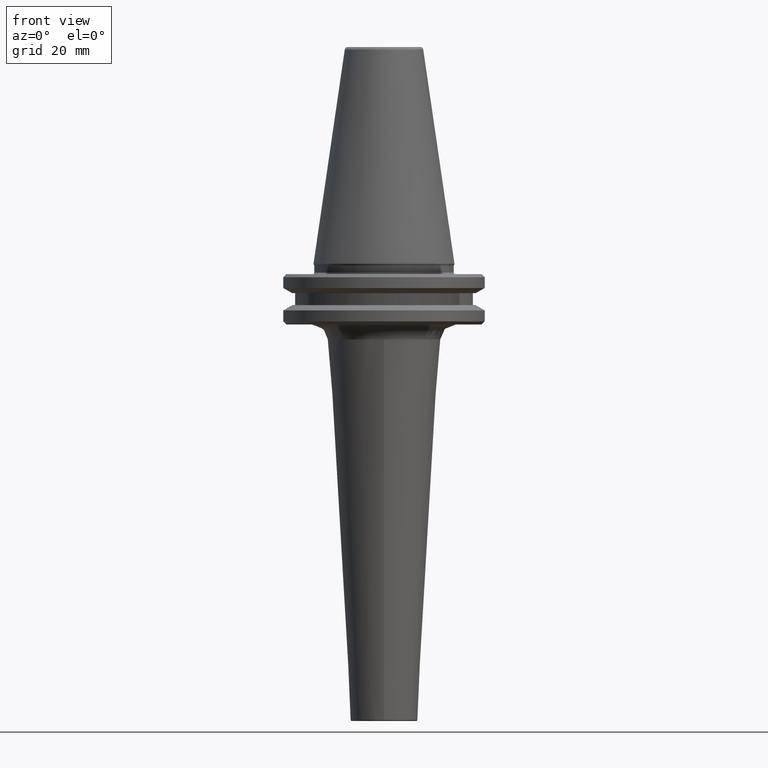
[diagram: clean part render]
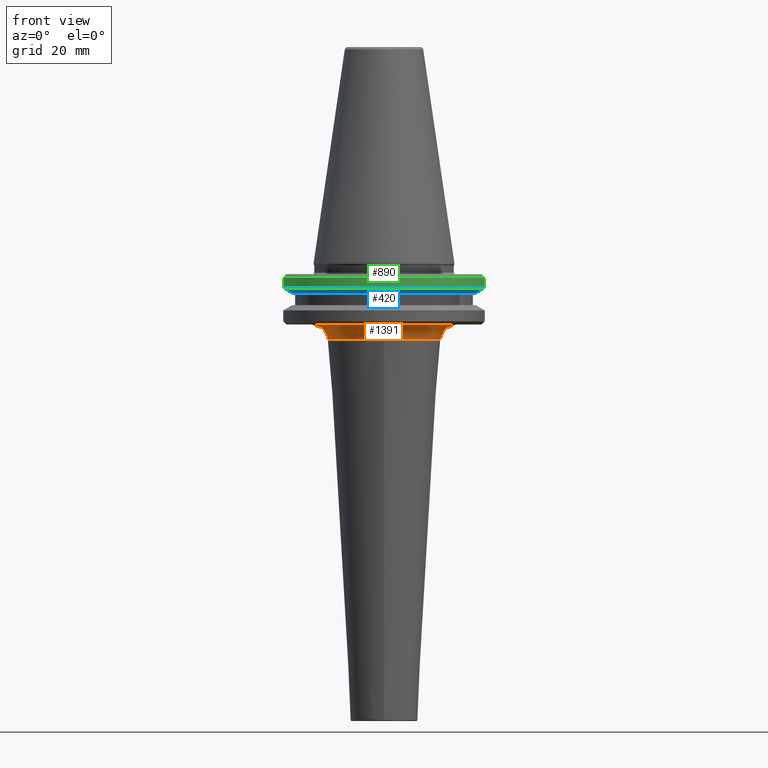
[diagram: same view with three faces highlighted in distinct colors, each labeled with its STEP entity id]
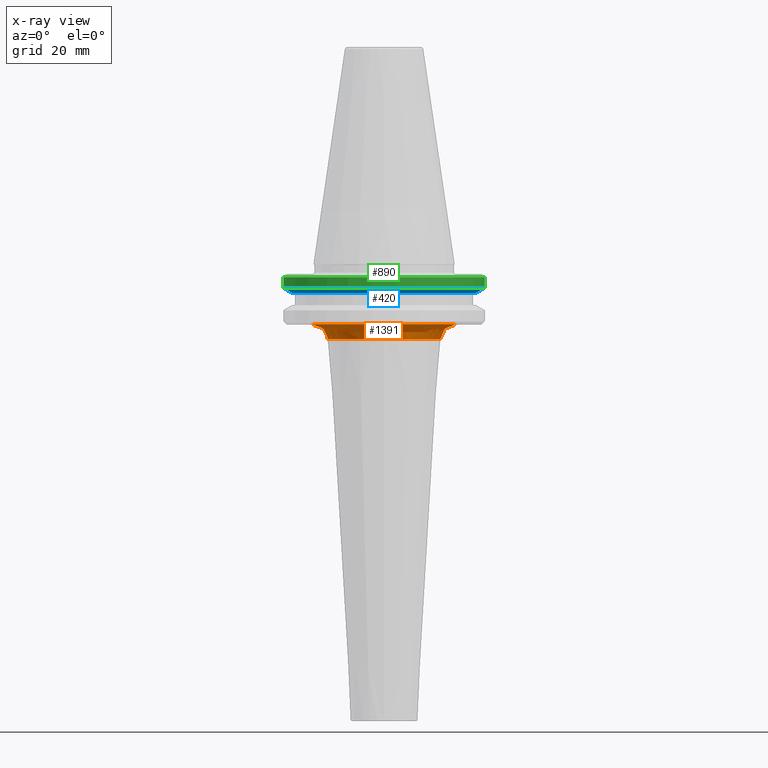
[diagram: x-ray of the same camera — body ghosted, the three highlighted faces saturated]
A machine part, front view with three faces highlighted in distinct colors.
The next image is the same camera in x-ray (body ghosted, the three faces saturated) — at least one of them is partly hidden behind the body in this view.
Their STEP definitions:

[orange] entity #1391 — the highlighted face is a freeform B-spline surface patch.
#20 = CARTESIAN_POINT ( 'NONE',  ( 21.05824986992720200, -8.552586797056948200, -19.10000000000000500 ) ) ;
#38 = CARTESIAN_POINT ( 'NONE',  ( 7.038244224207605100, -21.59082057151916300, -19.10000000000000100 ) ) ;
#45 = CARTESIAN_POINT ( 'NONE',  ( 10.81266224561229800, -19.96982658369817500, -19.10000000000000500 ) ) ;
#47 = CARTESIAN_POINT ( 'NONE',  ( 17.71796768721837600, -35.43593537443677400, -23.80053854636027200 ) ) ;
#51 = CARTESIAN_POINT ( 'NONE',  ( 6.997446660326182200, -21.60407386229723100, -19.10000000000000100 ) ) ;
#57 = CIRCLE ( 'NONE', #1131, 17.71796768721838300 ) ;
#59 = CARTESIAN_POINT ( 'NONE',  ( 6.912511240026787200, -21.63140240468897000, -19.10000000000000500 ) ) ;
#68 = CARTESIAN_POINT ( 'NONE',  ( 6.785022159195611900, -21.67201185534867500, -19.10000000000000500 ) ) ;
#74 = CARTESIAN_POINT ( 'NONE',  ( 6.486945984581702800, -21.76408369972616100, -19.10000000000000500 ) ) ;
#77 = CARTESIAN_POINT ( 'NONE',  ( 5.888387024655842500, -21.93749322650047900, -19.10000000000000100 ) ) ;
#89 = CARTESIAN_POINT ( 'NONE',  ( 22.46772562167493000, -3.567456394310691600, -19.10000000000000100 ) ) ;
#98 = ORIENTED_EDGE ( 'NONE', *, *, #1439, .F. ) ;
#112 = CARTESIAN_POINT ( 'NONE',  ( 22.60000000000000100, -1.092821595696183200E-016, -19.10059403244675400 ) ) ;
#119 = CARTESIAN_POINT ( 'NONE',  ( 22.70899191454728000, -5.562098852002690300E-015, -19.10000000000001200 ) ) ;
#120 = CARTESIAN_POINT ( 'NONE',  ( 22.60000000000000100, -0.7407439034866305500, -19.10000000000000500 ) ) ;
#130 = DIRECTION ( 'NONE',  ( -0.0000000000000000000, -0.0000000000000000000, -1.000000000000000000 ) ) ;
#142 = CARTESIAN_POINT ( 'NONE',  ( 20.62569327050234600, -9.528347594130348600, -19.10000000000000900 ) ) ;
#153 = ORIENTED_EDGE ( 'NONE', *, *, #499, .F. ) ;
#155 = B_SPLINE_CURVE_WITH_KNOTS ( 'NONE', 3,
 ( #1508, #1499, #1487, #1410, #1405, #1399, #1392, #1383, #1378, #1371, #1289, #1282, #1273, #1266, #1259, #1253, #1158, #1151, #1144, #1139, #1130, #1034, #1030, #1020, #1005, #1002, #909, #902, #892, #887, #880, #875, #794, #787, #783, #777, #772, #765, #761, #677, #669, #659, #652, #648, #635, #533, #525, #521, #438, #433, #428, #409, #324, #316, #308, #301, #295, #288, #193, #184, #179, #171, #164, #161, #77, #74, #68, #59, #51, #38, #643, #560, #1013, #544, #45, #415, #1492, #539, #1471, #1360, #1357, #1238, #1231, #1106, #1101, #981, #976, #745, #508, #503, #393, #386, #269, #261, #142, #20, #1531, #1421, #1174, #1053, #923, #691, #211, #807, #89, #1527 ),
 .UNSPECIFIED., .F., .F.,
 ( 4, 1, 1, 1, 1, 1, 2, 2, 1, 1, 1, 1, 2, 2, 1, 1, 1, 2, 2, 2, 1, 1, 1, 2, 2, 1, 1, 1, 1, 2, 2, 1, 1, 1, 1, 1, 2, 2, 2, 1, 1, 1, 1, 1, 2, 2, 1, 1, 1, 1, 2, 2, 1, 1, 1, 2, 2, 2, 1, 1, 1, 2, 2, 1, 1, 1, 1, 2, 2, 1, 1, 1, 1, 1, 2, 2, 4 ),
 ( 0.0000000000000000000, 0.03124999999999741200, 0.04687499999999612800, 0.05468749999999549700, 0.05859374999999519800, 0.06054687499999502500, 0.06152343749999494800, 0.06249999999999486500, 0.09374999999999372700, 0.1093749999999931600, 0.1171874999999928700, 0.1210937499999927000, 0.1230468749999926700, 0.1249999999999926200, 0.1562499999999918100, 0.1718749999999913700, 0.1796874999999911200, 0.1835937499999909800, 0.1874999999999908400, 0.2499999999999887300, 0.2812499999999876800, 0.2968749999999871800, 0.3046874999999869000, 0.3085937499999868400, 0.3124999999999867300, 0.3437499999999856800, 0.3593749999999851800, 0.3671874999999849000, 0.3710937499999847300, 0.3730468749999846800, 0.3749999999999846200, 0.4062499999999835700, 0.4218749999999830700, 0.4296874999999827900, 0.4335937499999826300, 0.4355468749999825100, 0.4365234374999825100, 0.4374999999999824600, 0.4999999999999824600, 0.5312499999999824600, 0.5468749999999824600, 0.5546874999999824600, 0.5585937499999824600, 0.5605468749999825700, 0.5615234374999825700, 0.5624999999999825700, 0.5937499999999827900, 0.6093749999999829000, 0.6171874999999830100, 0.6210937499999830100, 0.6230468749999830100, 0.6249999999999831200, 0.6562499999999839000, 0.6718749999999843500, 0.6796874999999844600, 0.6835937499999845700, 0.6874999999999846800, 0.7499999999999877900, 0.7812499999999894500, 0.7968749999999902300, 0.8046874999999905600, 0.8085937499999906700, 0.8124999999999907900, 0.8437499999999926700, 0.8593749999999935600, 0.8671874999999940000, 0.8710937499999941200, 0.8730468749999942300, 0.8749999999999942300, 0.9062499999999957800, 0.9218749999999965600, 0.9296874999999968900, 0.9335937499999972200, 0.9355468749999972200, 0.9365234374999972200, 0.9374999999999973400, 1.000000000000000000 ),
 .UNSPECIFIED. ) ;
#161 = CARTESIAN_POINT ( 'NONE',  ( 4.681642662011941300, -22.24137563212648100, -19.10000000000000100 ) ) ;
#164 = CARTESIAN_POINT ( 'NONE',  ( 3.630787877816293600, -22.42824058336712400, -19.10000000000001200 ) ) ;
#166 = CARTESIAN_POINT ( 'NONE',  ( -17.88516356507829700, 2.190300831220000200E-015, -21.01394058202840800 ) ) ;
#171 = CARTESIAN_POINT ( 'NONE',  ( 2.900761580059362500, -22.52297429969155100, -19.10000000000000500 ) ) ;
#179 = CARTESIAN_POINT ( 'NONE',  ( 2.880987524520817200, -22.52551086802201000, -19.10000000000000500 ) ) ;
#184 = CARTESIAN_POINT ( 'NONE',  ( 2.839088184159091400, -22.53083019352195400, -19.10000000000000100 ) ) ;
#193 = CARTESIAN_POINT ( 'NONE',  ( 2.776235897816257600, -22.53872122026483600, -19.10000000000000500 ) ) ;
#211 = CARTESIAN_POINT ( 'NONE',  ( 21.84322067624728800, -6.210672182854886500, -19.10000000000000900 ) ) ;
#220 = VERTEX_POINT ( 'NONE', #749 ) ;
#234 = CARTESIAN_POINT ( 'NONE',  ( 22.60000000000000100, -2.222231710459885000, -19.10000000000006200 ) ) ;
#240 = CARTESIAN_POINT ( 'NONE',  ( 22.60000000000000100, -1.481487806973261300, -19.10000000000000500 ) ) ;
#261 = CARTESIAN_POINT ( 'NONE',  ( 20.28612297266703400, -10.20654065591296900, -19.10000000000000500 ) ) ;
#268 = DIRECTION ( 'NONE',  ( -0.0000000000000000000, -0.0000000000000000000, -1.000000000000000000 ) ) ;
#269 = CARTESIAN_POINT ( 'NONE',  ( 20.26444278876868000, -10.24952632616011300, -19.10000000000000900 ) ) ;
#288 = CARTESIAN_POINT ( 'NONE',  ( 2.629557632414614600, -22.55651788544911800, -19.10000000000000500 ) ) ;
#295 = CARTESIAN_POINT ( 'NONE',  ( 2.336109379204499800, -22.58964829362123400, -19.10000000000000500 ) ) ;
#297 = CARTESIAN_POINT ( 'NONE',  ( 17.88516356507828700, -35.77032713015660200, -21.01394058202841500 ) ) ;
#301 = CARTESIAN_POINT ( 'NONE',  ( 1.748845983156999600, -22.64605742117957000, -19.10000000000000500 ) ) ;
#308 = CARTESIAN_POINT ( 'NONE',  ( 0.5728516325529052800, -22.71946892115268200, -19.10000000000000500 ) ) ;
#316 = CARTESIAN_POINT ( 'NONE',  ( -0.4376593396947687200, -22.71483862659780700, -19.10000000000000900 ) ) ;
#324 = CARTESIAN_POINT ( 'NONE',  ( -2.462035703639463300, -22.61550545430279200, -19.10000000000000500 ) ) ;
#386 = CARTESIAN_POINT ( 'NONE',  ( 20.22242951079811100, -10.33217884318840700, -19.10000000000000100 ) ) ;
#388 = CARTESIAN_POINT ( 'NONE',  ( 22.70899191454727600, 0.0000000000000000000, -24.10000000000000900 ) ) ;
#393 = CARTESIAN_POINT ( 'NONE',  ( 20.15905122317213100, -10.45593075599536600, -19.10000000000000500 ) ) ;
#407 = ORIENTED_EDGE ( 'NONE', *, *, #1304, .T. ) ;
#409 = CARTESIAN_POINT ( 'NONE',  ( -3.796090618258221500, -22.43022796401192700, -19.10000000000000900 ) ) ;
#415 = CARTESIAN_POINT ( 'NONE',  ( 10.97526971944980500, -19.88090586566003600, -19.10000000000000900 ) ) ;
#417 = CARTESIAN_POINT ( 'NONE',  ( -19.91738258006084200, 2.439175882406475700E-015, -19.10000000000000900 ) ) ;
#421 = EDGE_CURVE ( 'NONE', #515, #220, #455, .T. ) ;
#428 = CARTESIAN_POINT ( 'NONE',  ( -5.133173381836639800, -22.12124023187648400, -19.10000000000000900 ) ) ;
#433 = CARTESIAN_POINT ( 'NONE',  ( -5.156082680932881200, -22.11591265349128200, -19.10000000000000100 ) ) ;
#438 = CARTESIAN_POINT ( 'NONE',  ( -5.199531243110266500, -22.10573829742757500, -19.10000000000000100 ) ) ;
#440 = DIRECTION ( 'NONE',  ( -1.224646799147353200E-016, -1.000000000000000000, 0.0000000000000000000 ) ) ;
#444 = AXIS2_PLACEMENT_3D ( 'NONE', #1163, #440, #1291 ) ;
#455 = B_SPLINE_CURVE_WITH_KNOTS ( 'NONE', 3,
 ( #234, #240, #120, #112 ),
 .UNSPECIFIED., .F., .F.,
 ( 4, 4 ),
 ( 0.0000000000000000000, 0.5000000000000006700 ),
 .UNSPECIFIED. ) ;
#499 = EDGE_CURVE ( 'NONE', #1176, #515, #155, .T. ) ;
#503 = CARTESIAN_POINT ( 'NONE',  ( 20.00865995735391700, -10.74309718006324800, -19.10000000000000500 ) ) ;
#504 = DIRECTION ( 'NONE',  ( 1.000000000000000000, 0.0000000000000000000, 0.0000000000000000000 ) ) ;
#507 = CARTESIAN_POINT ( 'NONE',  ( 0.0000000000000000000, -17.71796768721838000, -23.80053854636027200 ) ) ;
#508 = CARTESIAN_POINT ( 'NONE',  ( 19.69784304695374300, -11.31107787160559000, -19.10000000000000900 ) ) ;
#515 = VERTEX_POINT ( 'NONE', #1503 ) ;
#521 = CARTESIAN_POINT ( 'NONE',  ( -5.264672845402433400, -22.09038364307097500, -19.10000000000000100 ) ) ;
#525 = CARTESIAN_POINT ( 'NONE',  ( -5.416451230600124200, -22.05390427441153600, -19.10000000000000100 ) ) ;
#527 = CARTESIAN_POINT ( 'NONE',  ( -17.71796768721838300, 2.169825241554822800E-015, -23.80053854636027200 ) ) ;
#533 = CARTESIAN_POINT ( 'NONE',  ( -5.719133253726028000, -21.97833816978330300, -19.10000000000000500 ) ) ;
#534 = ORIENTED_EDGE ( 'NONE', *, *, #1073, .F. ) ;
#535 = CARTESIAN_POINT ( 'NONE',  ( 19.91738258006083100, -39.83476516012167700, -19.10000000000001600 ) ) ;
#539 = CARTESIAN_POINT ( 'NONE',  ( 12.45604775288830800, -19.04828020648098900, -19.10000000000001200 ) ) ;
#544 = CARTESIAN_POINT ( 'NONE',  ( 10.56807102734074100, -20.10165334776179300, -19.10000000000000500 ) ) ;
#560 = CARTESIAN_POINT ( 'NONE',  ( 8.822612131189867300, -20.94827935952077200, -19.10000000000000500 ) ) ;
#635 = CARTESIAN_POINT ( 'NONE',  ( -6.320998310899911500, -21.81677649128935000, -19.10000000000000900 ) ) ;
#643 = CARTESIAN_POINT ( 'NONE',  ( 7.787126626817957300, -21.34502412431295300, -19.10000000000000900 ) ) ;
#648 = CARTESIAN_POINT ( 'NONE',  ( -7.510732468936029500, -21.45193525735149000, -19.10000000000000900 ) ) ;
#649 = CARTESIAN_POINT ( 'NONE',  ( -22.70899191454728000, 2.781049426001345100E-015, -19.10000000000001200 ) ) ;
#652 = CARTESIAN_POINT ( 'NONE',  ( -8.506511536432716600, -21.06769783920485400, -19.10000000000000500 ) ) ;
#659 = CARTESIAN_POINT ( 'NONE',  ( -9.200524982704861200, -20.76175805334387900, -19.09999999999999800 ) ) ;
#669 = CARTESIAN_POINT ( 'NONE',  ( -9.244521097460239600, -20.74220964913154200, -19.10000000000000100 ) ) ;
#677 = CARTESIAN_POINT ( 'NONE',  ( -9.329132497819577100, -20.70429573313051100, -19.10000000000000500 ) ) ;
#682 = CIRCLE ( 'NONE', #967, 17.71796768721838300 ) ;
#691 = CARTESIAN_POINT ( 'NONE',  ( 21.83677795582024900, -6.233290432643167700, -19.10000000000000100 ) ) ;
#719 =( BOUNDED_SURFACE ( )  B_SPLINE_SURFACE ( 3, 3, ( 
 ( #527, #1486, #47, #882 ),
 ( #166, #1007, #297, #1133 ),
 ( #417, #1261, #535, #1385 ),
 ( #649, #1500, #751, #119 ) ),
 .UNSPECIFIED., .F., .F., .F. ) 
 B_SPLINE_SURFACE_WITH_KNOTS ( ( 4, 4 ),
 ( 4, 4 ),
 ( 0.0000000000000000000, 1.000000000000000000 ),
 ( 0.0000000000000000000, 1.000000000000000000 ),
 .UNSPECIFIED. ) 
 GEOMETRIC_REPRESENTATION_ITEM ( )  RATIONAL_B_SPLINE_SURFACE ( (
 ( 1.000000000000000000, 0.3333333333333334300, 0.3333333333333334300, 1.000000000000000000),
 ( 0.8186493336483505700, 0.2728831112161169100, 0.2728831112161169100, 0.8186493336483505700),
 ( 0.8186493336483505700, 0.2728831112161169100, 0.2728831112161169100, 0.8186493336483505700),
 ( 1.000000000000000000, 0.3333333333333334300, 0.3333333333333334300, 1.000000000000000000) ) ) 
 REPRESENTATION_ITEM ( '' )  SURFACE ( )  );
#745 = CARTESIAN_POINT ( 'NONE',  ( 19.03607171109846500, -12.42163062831655300, -19.10000000000000500 ) ) ;
#749 = CARTESIAN_POINT ( 'NONE',  ( 22.60000000000000100, -1.092821595696183200E-016, -19.10059403244675400 ) ) ;
#751 = CARTESIAN_POINT ( 'NONE',  ( 22.70899191454726900, -45.41798382909455300, -19.10000000000001200 ) ) ;
#761 = CARTESIAN_POINT ( 'NONE',  ( -9.455840563593596900, -20.64705580533210500, -19.10000000000000100 ) ) ;
#765 = CARTESIAN_POINT ( 'NONE',  ( -9.750029473711370200, -20.51091259722442900, -19.10000000000000500 ) ) ;
#772 = CARTESIAN_POINT ( 'NONE',  ( -10.33255432052719600, -20.22829267469683100, -19.10000000000000500 ) ) ;
#777 = CARTESIAN_POINT ( 'NONE',  ( -11.47419212047997800, -19.62171880439270000, -19.10000000000000900 ) ) ;
#783 = CARTESIAN_POINT ( 'NONE',  ( -12.41260413127570800, -19.03094001513382600, -19.10000000000000100 ) ) ;
#787 = CARTESIAN_POINT ( 'NONE',  ( -13.09634580193346300, -18.55242675869057600, -19.10000000000000100 ) ) ;
#794 = CARTESIAN_POINT ( 'NONE',  ( -13.17504307874435200, -18.49663659555381700, -19.10000000000000500 ) ) ;
#807 = CARTESIAN_POINT ( 'NONE',  ( 22.21738463663111000, -4.890164718625835700, -19.10000000000000100 ) ) ;
#840 = CARTESIAN_POINT ( 'NONE',  ( 17.71796768721838300, 0.0000000000000000000, -23.80053854636027200 ) ) ;
#846 = CARTESIAN_POINT ( 'NONE',  ( 0.0000000000000000000, 0.0000000000000000000, -23.80053854636027200 ) ) ;
#875 = CARTESIAN_POINT ( 'NONE',  ( -13.32855790460526200, -18.38634295825058700, -19.10000000000000900 ) ) ;
#880 = CARTESIAN_POINT ( 'NONE',  ( -13.55767639570686400, -18.21956716773407000, -19.10000000000000100 ) ) ;
#882 = CARTESIAN_POINT ( 'NONE',  ( 17.71796768721838300, -4.339650483109645600E-015, -23.80053854636027200 ) ) ;
#887 = CARTESIAN_POINT ( 'NONE',  ( -14.08420997444913400, -17.82107631459717100, -19.10000000000000100 ) ) ;
#892 = CARTESIAN_POINT ( 'NONE',  ( -15.10497219662096300, -16.98670524059670900, -19.10000000000000900 ) ) ;
#902 = CARTESIAN_POINT ( 'NONE',  ( -15.92453135508935500, -16.20743397535056100, -19.10000000000000500 ) ) ;
#909 = CARTESIAN_POINT ( 'NONE',  ( -17.48980981988282200, -14.56343003291152800, -19.10000000000000500 ) ) ;
#923 = CARTESIAN_POINT ( 'NONE',  ( 21.82448738872071600, -6.276188416707934300, -19.10000000000000900 ) ) ;
#967 = AXIS2_PLACEMENT_3D ( 'NONE', #846, #130, #968 ) ;
#968 = DIRECTION ( 'NONE',  ( 1.000000000000000000, 0.0000000000000000000, 7.832607019497949600E-016 ) ) ;
#976 = CARTESIAN_POINT ( 'NONE',  ( 18.40003196884265400, -13.32997534599961600, -19.10000000000001200 ) ) ;
#980 = CARTESIAN_POINT ( 'NONE',  ( 0.0000000000000000000, 0.0000000000000000000, -23.80053854636027200 ) ) ;
#981 = CARTESIAN_POINT ( 'NONE',  ( 17.88859857781801200, -13.98945506165586700, -19.10000000000000900 ) ) ;
#990 = CARTESIAN_POINT ( 'NONE',  ( -22.70899191454727600, 2.781049426001344700E-015, -19.10000000000000900 ) ) ;
#1002 = CARTESIAN_POINT ( 'NONE',  ( -18.41522315721716300, -13.37421625801120800, -19.10000000000000100 ) ) ;
#1005 = CARTESIAN_POINT ( 'NONE',  ( -19.27145630280267600, -12.01324807831169000, -19.10000000000000900 ) ) ;
#1007 = CARTESIAN_POINT ( 'NONE',  ( -17.88516356507830500, -35.77032713015658100, -21.01394058202841500 ) ) ;
#1013 = CARTESIAN_POINT ( 'NONE',  ( 9.992598132099967500, -20.39836893962170800, -19.10000000000000500 ) ) ;
#1020 = CARTESIAN_POINT ( 'NONE',  ( -19.31938843826564400, -11.93600409791420000, -19.10000000000000900 ) ) ;
#1030 = CARTESIAN_POINT ( 'NONE',  ( -19.41616809417189400, -11.77794783312119600, -19.10000000000000500 ) ) ;
#1034 = CARTESIAN_POINT ( 'NONE',  ( -19.55981844285188800, -11.54010810328320600, -19.10000000000000500 ) ) ;
#1053 = CARTESIAN_POINT ( 'NONE',  ( 21.80596006002019400, -6.340499627631891700, -19.10000000000000500 ) ) ;
#1066 = ORIENTED_EDGE ( 'NONE', *, *, #1206, .F. ) ;
#1073 = EDGE_CURVE ( 'NONE', #1414, #1160, #57, .T. ) ;
#1101 = CARTESIAN_POINT ( 'NONE',  ( 17.82902023163202200, -14.06532484711288200, -19.10000000000000500 ) ) ;
#1105 = DIRECTION ( 'NONE',  ( 1.000000000000000000, 0.0000000000000000000, 7.832607019497949600E-016 ) ) ;
#1106 = CARTESIAN_POINT ( 'NONE',  ( 17.71133874069339200, -14.21325237963664300, -19.10000000000000500 ) ) ;
#1108 = CIRCLE ( 'NONE', #1362, 4.999999999999997300 ) ;
#1130 = CARTESIAN_POINT ( 'NONE',  ( -19.88436864351611500, -10.97986140512180800, -19.10000000000000500 ) ) ;
#1131 = AXIS2_PLACEMENT_3D ( 'NONE', #980, #268, #1105 ) ;
#1133 = CARTESIAN_POINT ( 'NONE',  ( 17.88516356507829700, -4.380601662439999600E-015, -21.01394058202840800 ) ) ;
#1139 = CARTESIAN_POINT ( 'NONE',  ( -20.49093325982155300, -9.838218694641380300, -19.10000000000000500 ) ) ;
#1144 = CARTESIAN_POINT ( 'NONE',  ( -20.93792729947246700, -8.823411832816491400, -19.10000000000000500 ) ) ;
#1151 = CARTESIAN_POINT ( 'NONE',  ( -21.22011434682560000, -8.087469432324818200, -19.10000000000000500 ) ) ;
#1158 = CARTESIAN_POINT ( 'NONE',  ( -21.23535028691505400, -8.047370092381054700, -19.10000000000000900 ) ) ;
#1160 = VERTEX_POINT ( 'NONE', #507 ) ;
#1163 = CARTESIAN_POINT ( 'NONE',  ( -22.70899191454727600, 2.781049426001344700E-015, -24.10000000000000900 ) ) ;
#1174 = CARTESIAN_POINT ( 'NONE',  ( 21.76208928002707000, -6.490308763575454200, -19.10000000000000900 ) ) ;
#1176 = VERTEX_POINT ( 'NONE', #990 ) ;
#1194 = CIRCLE ( 'NONE', #444, 4.999999999999997300 ) ;
#1206 = EDGE_CURVE ( 'NONE', #1498, #1176, #1194, .T. ) ;
#1231 = CARTESIAN_POINT ( 'NONE',  ( 17.53353929186889100, -14.43392590152722700, -19.10000000000000100 ) ) ;
#1233 = DIRECTION ( 'NONE',  ( 0.0000000000000000000, 1.000000000000000000, 0.0000000000000000000 ) ) ;
#1238 = CARTESIAN_POINT ( 'NONE',  ( 17.10973342436249200, -14.94030634767321800, -19.10000000000000500 ) ) ;
#1253 = CARTESIAN_POINT ( 'NONE',  ( -21.26680677289495600, -7.963875395903818900, -19.10000000000000500 ) ) ;
#1259 = CARTESIAN_POINT ( 'NONE',  ( -21.31361280967565000, -7.838528724095178600, -19.10000000000000500 ) ) ;
#1261 = CARTESIAN_POINT ( 'NONE',  ( -19.91738258006084200, -39.83476516012167000, -19.10000000000001600 ) ) ;
#1266 = CARTESIAN_POINT ( 'NONE',  ( -21.42017605017329600, -7.545320766892211300, -19.10000000000000900 ) ) ;
#1273 = CARTESIAN_POINT ( 'NONE',  ( -21.62269914987264800, -6.955975293888379000, -19.10000000000000900 ) ) ;
#1282 = CARTESIAN_POINT ( 'NONE',  ( -21.98533182408746700, -5.765566113489073900, -19.10000000000000900 ) ) ;
#1289 = CARTESIAN_POINT ( 'NONE',  ( -22.22345093024210900, -4.725126985618312700, -19.10000000000000100 ) ) ;
#1291 = DIRECTION ( 'NONE',  ( -1.000000000000000000, 1.224646799147353500E-016, 0.0000000000000000000 ) ) ;
#1304 = EDGE_CURVE ( 'NONE', #1414, #220, #1108, .T. ) ;
#1346 = CARTESIAN_POINT ( 'NONE',  ( -17.71796768721838300, 2.475437333778084000E-015, -23.80053854636027200 ) ) ;
#1357 = CARTESIAN_POINT ( 'NONE',  ( 16.22635974168601100, -15.91896948690370000, -19.10000000000000500 ) ) ;
#1360 = CARTESIAN_POINT ( 'NONE',  ( 15.40787610339706900, -16.69937031528150600, -19.10000000000000900 ) ) ;
#1362 = AXIS2_PLACEMENT_3D ( 'NONE', #388, #1233, #504 ) ;
#1364 = FACE_OUTER_BOUND ( 'NONE', #1519, .T. ) ;
#1371 = CARTESIAN_POINT ( 'NONE',  ( -22.35383290307896700, -4.000617901042312900, -19.10000000000000500 ) ) ;
#1378 = CARTESIAN_POINT ( 'NONE',  ( -22.35733416768390200, -3.980997042891437900, -19.10000000000000100 ) ) ;
#1383 = CARTESIAN_POINT ( 'NONE',  ( -22.36469872782763300, -3.939413660366947800, -19.10000000000000500 ) ) ;
#1385 = CARTESIAN_POINT ( 'NONE',  ( 19.91738258006084200, -4.878351764812951400E-015, -19.10000000000000900 ) ) ;
#1391 = ADVANCED_FACE ( 'NONE', ( #1364 ), #719, .F. ) ;
#1392 = CARTESIAN_POINT ( 'NONE',  ( -22.37565789470818700, -3.877030882951319100, -19.10000000000000500 ) ) ;
#1399 = CARTESIAN_POINT ( 'NONE',  ( -22.40061557075085800, -3.731417143579289800, -19.10000000000000500 ) ) ;
#1405 = CARTESIAN_POINT ( 'NONE',  ( -22.44807606945493100, -3.439973963226312700, -19.10000000000000100 ) ) ;
#1410 = CARTESIAN_POINT ( 'NONE',  ( -22.53317765333810000, -2.856224796084665400, -19.10000000000000900 ) ) ;
#1414 = VERTEX_POINT ( 'NONE', #840 ) ;
#1421 = CARTESIAN_POINT ( 'NONE',  ( 21.67178633460667200, -6.788925610613176800, -19.10000000000000100 ) ) ;
#1429 = ORIENTED_EDGE ( 'NONE', *, *, #421, .F. ) ;
#1439 = EDGE_CURVE ( 'NONE', #1160, #1498, #682, .T. ) ;
#1471 = CARTESIAN_POINT ( 'NONE',  ( 13.68916723215934400, -18.18223425075368700, -19.10000000000000500 ) ) ;
#1486 = CARTESIAN_POINT ( 'NONE',  ( -17.71796768721839000, -35.43593537443676000, -23.80053854636027200 ) ) ;
#1487 = CARTESIAN_POINT ( 'NONE',  ( -22.66410316700451200, -1.685275236058618100, -19.10000000000000900 ) ) ;
#1492 = CARTESIAN_POINT ( 'NONE',  ( 11.05476902532722700, -19.83681524888749300, -19.10000000000000900 ) ) ;
#1498 = VERTEX_POINT ( 'NONE', #1346 ) ;
#1499 = CARTESIAN_POINT ( 'NONE',  ( -22.70899191454728000, -0.6756877976201337600, -19.10000000000000500 ) ) ;
#1500 = CARTESIAN_POINT ( 'NONE',  ( -22.70899191454728700, -45.41798382909455300, -19.10000000000001200 ) ) ;
#1503 = CARTESIAN_POINT ( 'NONE',  ( 22.60000000000000100, -2.222231710459885000, -19.10000000000006200 ) ) ;
#1508 = CARTESIAN_POINT ( 'NONE',  ( -22.70899191454727600, 2.781049426001344700E-015, -19.10000000000000900 ) ) ;
#1519 = EDGE_LOOP ( 'NONE', ( #1066, #98, #534, #407, #1429, #153 ) ) ;
#1527 = CARTESIAN_POINT ( 'NONE',  ( 22.60000000000000100, -2.222231710459885000, -19.10000000000006200 ) ) ;
#1531 = CARTESIAN_POINT ( 'NONE',  ( 21.48093490202913400, -7.382153605291136100, -19.10000000000000500 ) ) ;

[blue] entity #420 — the highlighted conical surface has half-angle 60 deg.
#3 = VECTOR ( 'NONE', #987, 1000.000000000000000 ) ;
#17 = EDGE_CURVE ( 'NONE', #999, #1216, #339, .T. ) ;
#22 = DIRECTION ( 'NONE',  ( 0.0000000000000000000, -0.0000000000000000000, 1.000000000000000000 ) ) ;
#43 = EDGE_CURVE ( 'NONE', #725, #1216, #847, .T. ) ;
#147 = CIRCLE ( 'NONE', #401, 28.94089653438086500 ) ;
#154 = DIRECTION ( 'NONE',  ( -0.0000000000000000000, -0.0000000000000000000, -1.000000000000000000 ) ) ;
#298 = CONICAL_SURFACE ( 'NONE', #1209, 31.75000000000000000, 1.047197551196598500 ) ;
#327 = CARTESIAN_POINT ( 'NONE',  ( -31.75000000000000000, 3.888253587292846500E-015, -7.578163357943284800 ) ) ;
#339 = LINE ( 'NONE', #493, #3 ) ;
#361 = CARTESIAN_POINT ( 'NONE',  ( 31.75000000000000000, 0.0000000000000000000, -7.578163357943284800 ) ) ;
#363 = DIRECTION ( 'NONE',  ( 0.0000000000000000000, -0.0000000000000000000, 1.000000000000000000 ) ) ;
#376 = CARTESIAN_POINT ( 'NONE',  ( 0.0000000000000000000, 0.0000000000000000000, -7.578163357943284800 ) ) ;
#395 = CARTESIAN_POINT ( 'NONE',  ( -28.94089653438086500, 3.716245608910604000E-015, -9.199999999999999300 ) ) ;
#401 = AXIS2_PLACEMENT_3D ( 'NONE', #746, #22, #859 ) ;
#420 = ADVANCED_FACE ( 'NONE', ( #1435 ), #298, .T. ) ;
#484 = EDGE_LOOP ( 'NONE', ( #946, #1197, #911, #690 ) ) ;
#488 = DIRECTION ( 'NONE',  ( 1.000000000000000000, 0.0000000000000000000, 0.0000000000000000000 ) ) ;
#493 = CARTESIAN_POINT ( 'NONE',  ( -31.75000000000000000, 3.888253587292846500E-015, -7.578163357943284800 ) ) ;
#498 = CARTESIAN_POINT ( 'NONE',  ( 0.0000000000000000000, 0.0000000000000000000, -7.578163357943284800 ) ) ;
#575 = AXIS2_PLACEMENT_3D ( 'NONE', #498, #154, #1483 ) ;
#690 = ORIENTED_EDGE ( 'NONE', *, *, #43, .T. ) ;
#725 = VERTEX_POINT ( 'NONE', #361 ) ;
#746 = CARTESIAN_POINT ( 'NONE',  ( 0.0000000000000000000, 0.0000000000000000000, -9.199999999999999300 ) ) ;
#847 = CIRCLE ( 'NONE', #575, 31.75000000000000000 ) ;
#859 = DIRECTION ( 'NONE',  ( 1.000000000000000000, 0.0000000000000000000, 0.0000000000000000000 ) ) ;
#874 = EDGE_CURVE ( 'NONE', #941, #725, #958, .T. ) ;
#911 = ORIENTED_EDGE ( 'NONE', *, *, #874, .T. ) ;
#941 = VERTEX_POINT ( 'NONE', #1363 ) ;
#946 = ORIENTED_EDGE ( 'NONE', *, *, #17, .F. ) ;
#958 = LINE ( 'NONE', #1334, #1208 ) ;
#987 = DIRECTION ( 'NONE',  ( -0.8660254037844390400, 1.060575238724907400E-016, 0.4999999999999993300 ) ) ;
#999 = VERTEX_POINT ( 'NONE', #395 ) ;
#1197 = ORIENTED_EDGE ( 'NONE', *, *, #1311, .T. ) ;
#1208 = VECTOR ( 'NONE', #1452, 1000.000000000000000 ) ;
#1209 = AXIS2_PLACEMENT_3D ( 'NONE', #376, #363, #488 ) ;
#1216 = VERTEX_POINT ( 'NONE', #327 ) ;
#1311 = EDGE_CURVE ( 'NONE', #999, #941, #147, .T. ) ;
#1334 = CARTESIAN_POINT ( 'NONE',  ( 31.75000000000000000, 0.0000000000000000000, -7.578163357943284800 ) ) ;
#1363 = CARTESIAN_POINT ( 'NONE',  ( 28.94089653438086500, 0.0000000000000000000, -9.199999999999999300 ) ) ;
#1435 = FACE_OUTER_BOUND ( 'NONE', #484, .T. ) ;
#1452 = DIRECTION ( 'NONE',  ( 0.8660254037844390400, 0.0000000000000000000, 0.4999999999999993300 ) ) ;
#1483 = DIRECTION ( 'NONE',  ( 1.000000000000000000, 0.0000000000000000000, -5.463695987328526400E-017 ) ) ;

[green] entity #890 — the highlighted cylindrical surface (partial cylindrical patch) has radius 31.75 mm, axis along (0, 0, 1).
#4 = DIRECTION ( 'NONE',  ( 0.0000000000000000000, 0.0000000000000000000, 1.000000000000000000 ) ) ;
#15 = DIRECTION ( 'NONE',  ( -0.0000000000000000000, -0.0000000000000000000, 1.000000000000000000 ) ) ;
#43 = EDGE_CURVE ( 'NONE', #725, #1216, #847, .T. ) ;
#111 = CARTESIAN_POINT ( 'NONE',  ( 31.75000000000000000, 0.0000000000000000000, 113.5216080541959500 ) ) ;
#116 = CARTESIAN_POINT ( 'NONE',  ( -31.74999999999994300, 3.888253587292843300E-015, -4.200000000000036600 ) ) ;
#154 = DIRECTION ( 'NONE',  ( -0.0000000000000000000, -0.0000000000000000000, -1.000000000000000000 ) ) ;
#216 = CYLINDRICAL_SURFACE ( 'NONE', #1411, 31.75000000000000000 ) ;
#245 = FACE_OUTER_BOUND ( 'NONE', #461, .T. ) ;
#254 = CARTESIAN_POINT ( 'NONE',  ( -31.75000000000000000, 3.888253587292846500E-015, 113.5216080541959500 ) ) ;
#267 = EDGE_CURVE ( 'NONE', #725, #1178, #1557, .T. ) ;
#327 = CARTESIAN_POINT ( 'NONE',  ( -31.75000000000000000, 3.888253587292846500E-015, -7.578163357943284800 ) ) ;
#361 = CARTESIAN_POINT ( 'NONE',  ( 31.75000000000000000, 0.0000000000000000000, -7.578163357943284800 ) ) ;
#442 = VERTEX_POINT ( 'NONE', #116 ) ;
#461 = EDGE_LOOP ( 'NONE', ( #1155, #1236, #606, #1129 ) ) ;
#476 = AXIS2_PLACEMENT_3D ( 'NONE', #743, #15, #856 ) ;
#498 = CARTESIAN_POINT ( 'NONE',  ( 0.0000000000000000000, 0.0000000000000000000, -7.578163357943284800 ) ) ;
#557 = VECTOR ( 'NONE', #1076, 1000.000000000000000 ) ;
#575 = AXIS2_PLACEMENT_3D ( 'NONE', #498, #154, #1483 ) ;
#606 = ORIENTED_EDGE ( 'NONE', *, *, #267, .T. ) ;
#664 = CARTESIAN_POINT ( 'NONE',  ( 31.74999999999994300, 0.0000000000000000000, -4.200000000000036600 ) ) ;
#725 = VERTEX_POINT ( 'NONE', #361 ) ;
#743 = CARTESIAN_POINT ( 'NONE',  ( 0.0000000000000000000, 0.0000000000000000000, -4.200000000000036600 ) ) ;
#847 = CIRCLE ( 'NONE', #575, 31.75000000000000000 ) ;
#856 = DIRECTION ( 'NONE',  ( 1.000000000000000000, 0.0000000000000000000, 0.0000000000000000000 ) ) ;
#890 = ADVANCED_FACE ( 'NONE', ( #245 ), #216, .T. ) ;
#1076 = DIRECTION ( 'NONE',  ( 0.0000000000000000000, 0.0000000000000000000, 1.000000000000000000 ) ) ;
#1083 = DIRECTION ( 'NONE',  ( 0.0000000000000000000, 0.0000000000000000000, 1.000000000000000000 ) ) ;
#1129 = ORIENTED_EDGE ( 'NONE', *, *, #1265, .F. ) ;
#1155 = ORIENTED_EDGE ( 'NONE', *, *, #1480, .F. ) ;
#1178 = VERTEX_POINT ( 'NONE', #664 ) ;
#1216 = VERTEX_POINT ( 'NONE', #327 ) ;
#1232 = CIRCLE ( 'NONE', #476, 31.74999999999994300 ) ;
#1236 = ORIENTED_EDGE ( 'NONE', *, *, #43, .F. ) ;
#1265 = EDGE_CURVE ( 'NONE', #442, #1178, #1232, .T. ) ;
#1285 = DIRECTION ( 'NONE',  ( 1.000000000000000000, 0.0000000000000000000, 0.0000000000000000000 ) ) ;
#1295 = LINE ( 'NONE', #254, #1565 ) ;
#1411 = AXIS2_PLACEMENT_3D ( 'NONE', #1454, #1083, #1285 ) ;
#1454 = CARTESIAN_POINT ( 'NONE',  ( 0.0000000000000000000, 0.0000000000000000000, 113.5216080541959500 ) ) ;
#1480 = EDGE_CURVE ( 'NONE', #1216, #442, #1295, .T. ) ;
#1483 = DIRECTION ( 'NONE',  ( 1.000000000000000000, 0.0000000000000000000, -5.463695987328526400E-017 ) ) ;
#1557 = LINE ( 'NONE', #111, #557 ) ;
#1565 = VECTOR ( 'NONE', #4, 1000.000000000000000 ) ;